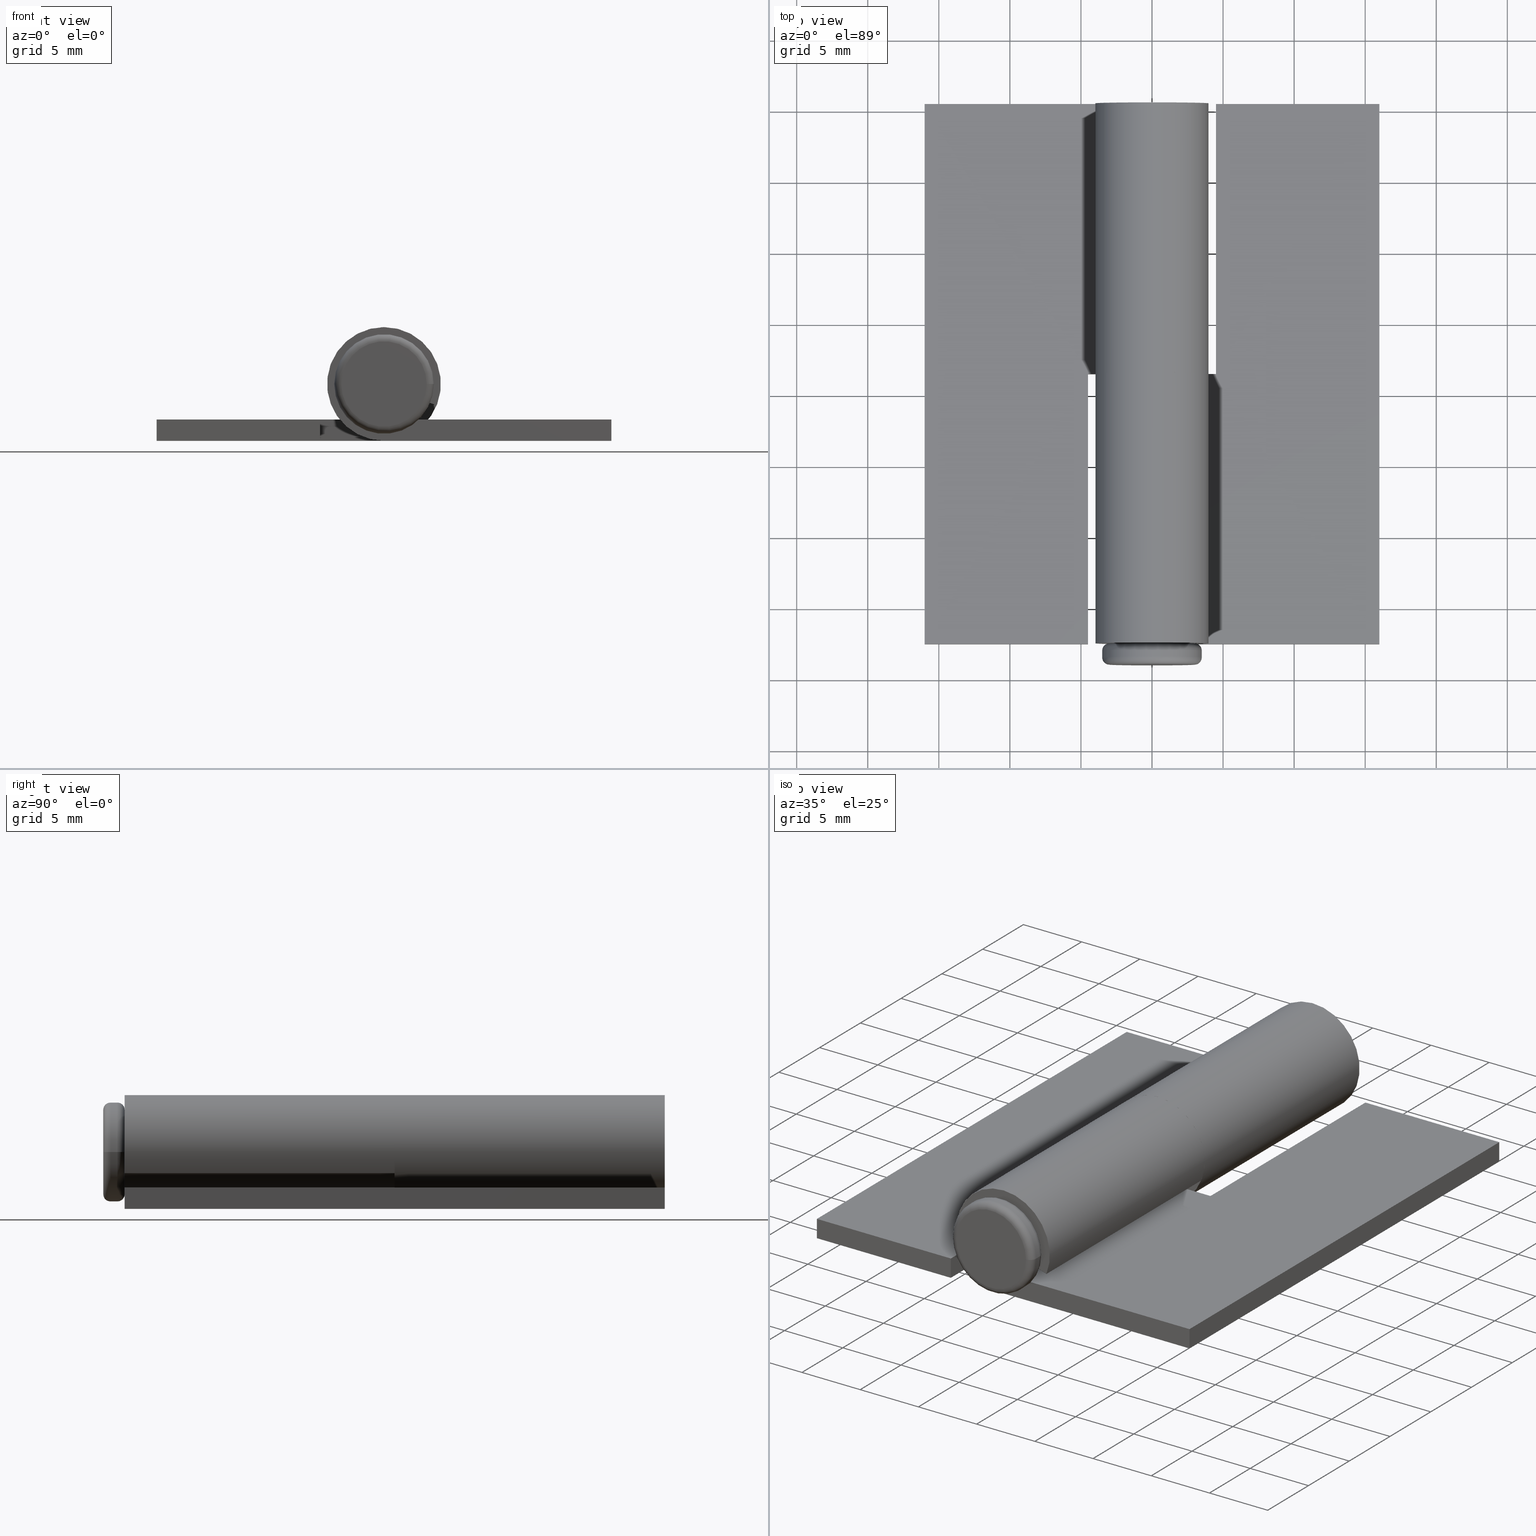
[diagram: canonical four-view strip — front | top / right | iso, engineering-drawing reading convention]
A machine part, canonical four-view strip (front | top / right | iso — engineering-drawing reading convention). The complete STEP part file that produces these views, byte-faithful:
ISO-10303-21;
HEADER;
/* Generated by software containing ST-Developer
 * from STEP Tools, Inc. (www.steptools.com) 
 */

FILE_DESCRIPTION(
/* description */ (''),
/* implementation_level */ '2;1');

FILE_NAME(
/* name */ 
'\\\\SYNOLOGYNAS\\web\\db2\\HBSN3832-15\\\X2\B3C4BA74\X0\\\DR_HBSN3832
-15.stp',
/* time_stamp */ '2023-06-05T14:53:35+09:00',
/* author */ ('user'),
/* organization */ (''),
/* preprocessor_version */ 'ST-DEVELOPER v15.6',
/* originating_system */ 'Autodesk Inventor 2015',
/* authorisation */ '');

FILE_SCHEMA (('AUTOMOTIVE_DESIGN { 1 0 10303 214 3 1 1 }'));
ENDSEC;

DATA;
#10=MECHANICAL_DESIGN_GEOMETRIC_PRESENTATION_REPRESENTATION('',(#32,#34,
#33),#773);
#11=ITEM_DEFINED_TRANSFORMATION($,$,#455,#501);
#12=ITEM_DEFINED_TRANSFORMATION($,$,#470,#502);
#13=(
REPRESENTATION_RELATIONSHIP($,$,#788,#790)
REPRESENTATION_RELATIONSHIP_WITH_TRANSFORMATION(#11)
SHAPE_REPRESENTATION_RELATIONSHIP()
);
#14=(
REPRESENTATION_RELATIONSHIP($,$,#789,#790)
REPRESENTATION_RELATIONSHIP_WITH_TRANSFORMATION(#12)
SHAPE_REPRESENTATION_RELATIONSHIP()
);
#15=CONTEXT_DEPENDENT_SHAPE_REPRESENTATION(#13,#786);
#16=CONTEXT_DEPENDENT_SHAPE_REPRESENTATION(#14,#787);
#17=NEXT_ASSEMBLY_USAGE_OCCURRENCE('DR_HBSN3832-15:1',$,$,#794,#792,$);
#18=NEXT_ASSEMBLY_USAGE_OCCURRENCE('DR_HBSN3832-15P2:1',$,$,#794,#793,$);
#19=FACE_BOUND('',#93,.T.);
#20=FACE_BOUND('',#95,.T.);
#21=FACE_BOUND('',#98,.T.);
#22=FACE_BOUND('',#100,.T.);
#23=FACE_BOUND('',#103,.T.);
#24=FACE_BOUND('',#105,.T.);
#25=TOROIDAL_SURFACE('',#485,1.5,1.);
#26=TOROIDAL_SURFACE('',#491,3.,0.5);
#27=TOROIDAL_SURFACE('',#497,3.,0.5);
#28=SHAPE_REPRESENTATION_RELATIONSHIP('SRR','None',#788,#30);
#29=SHAPE_REPRESENTATION_RELATIONSHIP('SRR','None',#789,#31);
#30=ADVANCED_BREP_SHAPE_REPRESENTATION($,(#35),#770);
#31=ADVANCED_BREP_SHAPE_REPRESENTATION($,(#36,#37),#771);
#32=STYLED_ITEM('',(#808),#35);
#33=STYLED_ITEM('',(#809),#36);
#34=STYLED_ITEM('',(#809),#37);
#35=MANIFOLD_SOLID_BREP('\X2\C194B9ACB4DC\X0\1',#452);
#36=MANIFOLD_SOLID_BREP('\X2\C194B9ACB4DC\X0\1',#453);
#37=MANIFOLD_SOLID_BREP('\X2\C194B9ACB4DC\X0\4',#454);
#38=CYLINDRICAL_SURFACE('',#461,4.);
#39=CYLINDRICAL_SURFACE('',#466,2.5);
#40=CYLINDRICAL_SURFACE('',#476,4.);
#41=CYLINDRICAL_SURFACE('',#481,2.5);
#42=CYLINDRICAL_SURFACE('',#488,2.5);
#43=CYLINDRICAL_SURFACE('',#494,3.5);
#44=FACE_OUTER_BOUND('',#72,.T.);
#45=FACE_OUTER_BOUND('',#73,.T.);
#46=FACE_OUTER_BOUND('',#74,.T.);
#47=FACE_OUTER_BOUND('',#75,.T.);
#48=FACE_OUTER_BOUND('',#76,.T.);
#49=FACE_OUTER_BOUND('',#77,.T.);
#50=FACE_OUTER_BOUND('',#78,.T.);
#51=FACE_OUTER_BOUND('',#79,.T.);
#52=FACE_OUTER_BOUND('',#80,.T.);
#53=FACE_OUTER_BOUND('',#81,.T.);
#54=FACE_OUTER_BOUND('',#82,.T.);
#55=FACE_OUTER_BOUND('',#83,.T.);
#56=FACE_OUTER_BOUND('',#84,.T.);
#57=FACE_OUTER_BOUND('',#85,.T.);
#58=FACE_OUTER_BOUND('',#86,.T.);
#59=FACE_OUTER_BOUND('',#87,.T.);
#60=FACE_OUTER_BOUND('',#88,.T.);
#61=FACE_OUTER_BOUND('',#89,.T.);
#62=FACE_OUTER_BOUND('',#90,.T.);
#63=FACE_OUTER_BOUND('',#91,.T.);
#64=FACE_OUTER_BOUND('',#92,.T.);
#65=FACE_OUTER_BOUND('',#94,.T.);
#66=FACE_OUTER_BOUND('',#96,.T.);
#67=FACE_OUTER_BOUND('',#97,.T.);
#68=FACE_OUTER_BOUND('',#99,.T.);
#69=FACE_OUTER_BOUND('',#101,.T.);
#70=FACE_OUTER_BOUND('',#102,.T.);
#71=FACE_OUTER_BOUND('',#104,.T.);
#72=EDGE_LOOP('',(#295,#296,#297,#298,#299,#300));
#73=EDGE_LOOP('',(#301,#302,#303,#304));
#74=EDGE_LOOP('',(#305,#306,#307,#308,#309,#310));
#75=EDGE_LOOP('',(#311,#312,#313,#314));
#76=EDGE_LOOP('',(#315,#316,#317,#318));
#77=EDGE_LOOP('',(#319,#320,#321,#322));
#78=EDGE_LOOP('',(#323,#324,#325,#326,#327,#328));
#79=EDGE_LOOP('',(#329,#330,#331,#332));
#80=EDGE_LOOP('',(#333,#334,#335,#336));
#81=EDGE_LOOP('',(#337,#338,#339,#340,#341,#342));
#82=EDGE_LOOP('',(#343,#344,#345,#346,#347,#348));
#83=EDGE_LOOP('',(#349,#350,#351,#352));
#84=EDGE_LOOP('',(#353,#354,#355,#356,#357,#358));
#85=EDGE_LOOP('',(#359,#360,#361,#362));
#86=EDGE_LOOP('',(#363,#364,#365,#366));
#87=EDGE_LOOP('',(#367,#368,#369,#370));
#88=EDGE_LOOP('',(#371,#372,#373,#374,#375,#376));
#89=EDGE_LOOP('',(#377,#378,#379,#380));
#90=EDGE_LOOP('',(#381,#382,#383,#384));
#91=EDGE_LOOP('',(#385,#386,#387,#388,#389,#390));
#92=EDGE_LOOP('',(#391));
#93=EDGE_LOOP('',(#392));
#94=EDGE_LOOP('',(#393));
#95=EDGE_LOOP('',(#394));
#96=EDGE_LOOP('',(#395));
#97=EDGE_LOOP('',(#396));
#98=EDGE_LOOP('',(#397));
#99=EDGE_LOOP('',(#398));
#100=EDGE_LOOP('',(#399));
#101=EDGE_LOOP('',(#400));
#102=EDGE_LOOP('',(#401));
#103=EDGE_LOOP('',(#402));
#104=EDGE_LOOP('',(#403));
#105=EDGE_LOOP('',(#404));
#106=LINE('',#645,#146);
#107=LINE('',#649,#147);
#108=LINE('',#651,#148);
#109=LINE('',#652,#149);
#110=LINE('',#655,#150);
#111=LINE('',#657,#151);
#112=LINE('',#658,#152);
#113=LINE('',#661,#153);
#114=LINE('',#663,#154);
#115=LINE('',#665,#155);
#116=LINE('',#666,#156);
#117=LINE('',#670,#157);
#118=LINE('',#673,#158);
#119=LINE('',#674,#159);
#120=LINE('',#677,#160);
#121=LINE('',#678,#161);
#122=LINE('',#681,#162);
#123=LINE('',#682,#163);
#124=LINE('',#685,#164);
#125=LINE('',#688,#165);
#126=LINE('',#696,#166);
#127=LINE('',#700,#167);
#128=LINE('',#702,#168);
#129=LINE('',#703,#169);
#130=LINE('',#706,#170);
#131=LINE('',#708,#171);
#132=LINE('',#709,#172);
#133=LINE('',#712,#173);
#134=LINE('',#714,#174);
#135=LINE('',#716,#175);
#136=LINE('',#717,#176);
#137=LINE('',#721,#177);
#138=LINE('',#724,#178);
#139=LINE('',#725,#179);
#140=LINE('',#728,#180);
#141=LINE('',#729,#181);
#142=LINE('',#732,#182);
#143=LINE('',#733,#183);
#144=LINE('',#736,#184);
#145=LINE('',#739,#185);
#146=VECTOR('',#509,1.50481750356272);
#147=VECTOR('',#512,4.5);
#148=VECTOR('',#513,1.5);
#149=VECTOR('',#514,4.5);
#150=VECTOR('',#517,19.);
#151=VECTOR('',#518,1.5);
#152=VECTOR('',#519,19.);
#153=VECTOR('',#522,11.5);
#154=VECTOR('',#523,38.);
#155=VECTOR('',#524,16.);
#156=VECTOR('',#525,19.);
#157=VECTOR('',#530,19.);
#158=VECTOR('',#533,11.5);
#159=VECTOR('',#534,1.5);
#160=VECTOR('',#537,38.);
#161=VECTOR('',#538,1.5);
#162=VECTOR('',#541,19.);
#163=VECTOR('',#542,16.);
#164=VECTOR('',#545,19.);
#165=VECTOR('',#550,1.50481750356272);
#166=VECTOR('',#559,1.50481750356272);
#167=VECTOR('',#562,4.5);
#168=VECTOR('',#563,1.5);
#169=VECTOR('',#564,4.5);
#170=VECTOR('',#567,19.);
#171=VECTOR('',#568,1.5);
#172=VECTOR('',#569,19.);
#173=VECTOR('',#572,11.5);
#174=VECTOR('',#573,38.);
#175=VECTOR('',#574,16.);
#176=VECTOR('',#575,19.);
#177=VECTOR('',#580,19.);
#178=VECTOR('',#583,11.5);
#179=VECTOR('',#584,1.5);
#180=VECTOR('',#587,38.);
#181=VECTOR('',#588,1.5);
#182=VECTOR('',#591,19.);
#183=VECTOR('',#592,16.);
#184=VECTOR('',#595,19.);
#185=VECTOR('',#600,1.50481750356272);
#186=CIRCLE('',#457,4.);
#187=CIRCLE('',#458,2.5);
#188=CIRCLE('',#462,4.);
#189=CIRCLE('',#467,2.5);
#190=CIRCLE('',#472,4.);
#191=CIRCLE('',#473,2.5);
#192=CIRCLE('',#477,4.);
#193=CIRCLE('',#482,2.5);
#194=CIRCLE('',#486,1.5);
#195=CIRCLE('',#487,2.5);
#196=CIRCLE('',#489,2.5);
#197=CIRCLE('',#492,3.);
#198=CIRCLE('',#493,3.5);
#199=CIRCLE('',#495,3.5);
#200=CIRCLE('',#498,3.);
#201=VERTEX_POINT('',#641);
#202=VERTEX_POINT('',#642);
#203=VERTEX_POINT('',#644);
#204=VERTEX_POINT('',#646);
#205=VERTEX_POINT('',#648);
#206=VERTEX_POINT('',#650);
#207=VERTEX_POINT('',#654);
#208=VERTEX_POINT('',#656);
#209=VERTEX_POINT('',#660);
#210=VERTEX_POINT('',#662);
#211=VERTEX_POINT('',#664);
#212=VERTEX_POINT('',#668);
#213=VERTEX_POINT('',#672);
#214=VERTEX_POINT('',#676);
#215=VERTEX_POINT('',#680);
#216=VERTEX_POINT('',#684);
#217=VERTEX_POINT('',#692);
#218=VERTEX_POINT('',#693);
#219=VERTEX_POINT('',#695);
#220=VERTEX_POINT('',#697);
#221=VERTEX_POINT('',#699);
#222=VERTEX_POINT('',#701);
#223=VERTEX_POINT('',#705);
#224=VERTEX_POINT('',#707);
#225=VERTEX_POINT('',#711);
#226=VERTEX_POINT('',#713);
#227=VERTEX_POINT('',#715);
#228=VERTEX_POINT('',#719);
#229=VERTEX_POINT('',#723);
#230=VERTEX_POINT('',#727);
#231=VERTEX_POINT('',#731);
#232=VERTEX_POINT('',#735);
#233=VERTEX_POINT('',#742);
#234=VERTEX_POINT('',#744);
#235=VERTEX_POINT('',#747);
#236=VERTEX_POINT('',#751);
#237=VERTEX_POINT('',#753);
#238=VERTEX_POINT('',#756);
#239=VERTEX_POINT('',#760);
#240=EDGE_CURVE('',#201,#202,#186,.T.);
#241=EDGE_CURVE('',#203,#201,#106,.T.);
#242=EDGE_CURVE('',#204,#203,#187,.T.);
#243=EDGE_CURVE('',#205,#204,#107,.T.);
#244=EDGE_CURVE('',#206,#205,#108,.T.);
#245=EDGE_CURVE('',#202,#206,#109,.T.);
#246=EDGE_CURVE('',#207,#205,#110,.T.);
#247=EDGE_CURVE('',#208,#207,#111,.T.);
#248=EDGE_CURVE('',#206,#208,#112,.T.);
#249=EDGE_CURVE('',#208,#209,#113,.T.);
#250=EDGE_CURVE('',#210,#209,#114,.T.);
#251=EDGE_CURVE('',#211,#210,#115,.T.);
#252=EDGE_CURVE('',#211,#202,#116,.T.);
#253=EDGE_CURVE('',#212,#211,#188,.T.);
#254=EDGE_CURVE('',#212,#201,#117,.T.);
#255=EDGE_CURVE('',#213,#207,#118,.T.);
#256=EDGE_CURVE('',#209,#213,#119,.T.);
#257=EDGE_CURVE('',#214,#213,#120,.T.);
#258=EDGE_CURVE('',#210,#214,#121,.T.);
#259=EDGE_CURVE('',#215,#204,#122,.T.);
#260=EDGE_CURVE('',#214,#215,#123,.T.);
#261=EDGE_CURVE('',#216,#203,#124,.T.);
#262=EDGE_CURVE('',#215,#216,#189,.T.);
#263=EDGE_CURVE('',#216,#212,#125,.T.);
#264=EDGE_CURVE('',#217,#218,#190,.T.);
#265=EDGE_CURVE('',#219,#217,#126,.T.);
#266=EDGE_CURVE('',#220,#219,#191,.T.);
#267=EDGE_CURVE('',#221,#220,#127,.T.);
#268=EDGE_CURVE('',#222,#221,#128,.T.);
#269=EDGE_CURVE('',#218,#222,#129,.T.);
#270=EDGE_CURVE('',#223,#221,#130,.T.);
#271=EDGE_CURVE('',#224,#223,#131,.T.);
#272=EDGE_CURVE('',#222,#224,#132,.T.);
#273=EDGE_CURVE('',#224,#225,#133,.T.);
#274=EDGE_CURVE('',#226,#225,#134,.T.);
#275=EDGE_CURVE('',#227,#226,#135,.T.);
#276=EDGE_CURVE('',#227,#218,#136,.T.);
#277=EDGE_CURVE('',#228,#227,#192,.T.);
#278=EDGE_CURVE('',#228,#217,#137,.T.);
#279=EDGE_CURVE('',#229,#223,#138,.T.);
#280=EDGE_CURVE('',#225,#229,#139,.T.);
#281=EDGE_CURVE('',#230,#229,#140,.T.);
#282=EDGE_CURVE('',#226,#230,#141,.T.);
#283=EDGE_CURVE('',#231,#220,#142,.T.);
#284=EDGE_CURVE('',#230,#231,#143,.T.);
#285=EDGE_CURVE('',#232,#219,#144,.T.);
#286=EDGE_CURVE('',#231,#232,#193,.T.);
#287=EDGE_CURVE('',#232,#228,#145,.T.);
#288=EDGE_CURVE('',#233,#233,#194,.T.);
#289=EDGE_CURVE('',#234,#234,#195,.T.);
#290=EDGE_CURVE('',#235,#235,#196,.T.);
#291=EDGE_CURVE('',#236,#236,#197,.T.);
#292=EDGE_CURVE('',#237,#237,#198,.T.);
#293=EDGE_CURVE('',#238,#238,#199,.T.);
#294=EDGE_CURVE('',#239,#239,#200,.T.);
#295=ORIENTED_EDGE('',*,*,#240,.F.);
#296=ORIENTED_EDGE('',*,*,#241,.F.);
#297=ORIENTED_EDGE('',*,*,#242,.F.);
#298=ORIENTED_EDGE('',*,*,#243,.F.);
#299=ORIENTED_EDGE('',*,*,#244,.F.);
#300=ORIENTED_EDGE('',*,*,#245,.F.);
#301=ORIENTED_EDGE('',*,*,#246,.F.);
#302=ORIENTED_EDGE('',*,*,#247,.F.);
#303=ORIENTED_EDGE('',*,*,#248,.F.);
#304=ORIENTED_EDGE('',*,*,#244,.T.);
#305=ORIENTED_EDGE('',*,*,#245,.T.);
#306=ORIENTED_EDGE('',*,*,#248,.T.);
#307=ORIENTED_EDGE('',*,*,#249,.T.);
#308=ORIENTED_EDGE('',*,*,#250,.F.);
#309=ORIENTED_EDGE('',*,*,#251,.F.);
#310=ORIENTED_EDGE('',*,*,#252,.T.);
#311=ORIENTED_EDGE('',*,*,#240,.T.);
#312=ORIENTED_EDGE('',*,*,#252,.F.);
#313=ORIENTED_EDGE('',*,*,#253,.F.);
#314=ORIENTED_EDGE('',*,*,#254,.T.);
#315=ORIENTED_EDGE('',*,*,#247,.T.);
#316=ORIENTED_EDGE('',*,*,#255,.F.);
#317=ORIENTED_EDGE('',*,*,#256,.F.);
#318=ORIENTED_EDGE('',*,*,#249,.F.);
#319=ORIENTED_EDGE('',*,*,#256,.T.);
#320=ORIENTED_EDGE('',*,*,#257,.F.);
#321=ORIENTED_EDGE('',*,*,#258,.F.);
#322=ORIENTED_EDGE('',*,*,#250,.T.);
#323=ORIENTED_EDGE('',*,*,#243,.T.);
#324=ORIENTED_EDGE('',*,*,#259,.F.);
#325=ORIENTED_EDGE('',*,*,#260,.F.);
#326=ORIENTED_EDGE('',*,*,#257,.T.);
#327=ORIENTED_EDGE('',*,*,#255,.T.);
#328=ORIENTED_EDGE('',*,*,#246,.T.);
#329=ORIENTED_EDGE('',*,*,#242,.T.);
#330=ORIENTED_EDGE('',*,*,#261,.F.);
#331=ORIENTED_EDGE('',*,*,#262,.F.);
#332=ORIENTED_EDGE('',*,*,#259,.T.);
#333=ORIENTED_EDGE('',*,*,#241,.T.);
#334=ORIENTED_EDGE('',*,*,#254,.F.);
#335=ORIENTED_EDGE('',*,*,#263,.F.);
#336=ORIENTED_EDGE('',*,*,#261,.T.);
#337=ORIENTED_EDGE('',*,*,#251,.T.);
#338=ORIENTED_EDGE('',*,*,#258,.T.);
#339=ORIENTED_EDGE('',*,*,#260,.T.);
#340=ORIENTED_EDGE('',*,*,#262,.T.);
#341=ORIENTED_EDGE('',*,*,#263,.T.);
#342=ORIENTED_EDGE('',*,*,#253,.T.);
#343=ORIENTED_EDGE('',*,*,#264,.F.);
#344=ORIENTED_EDGE('',*,*,#265,.F.);
#345=ORIENTED_EDGE('',*,*,#266,.F.);
#346=ORIENTED_EDGE('',*,*,#267,.F.);
#347=ORIENTED_EDGE('',*,*,#268,.F.);
#348=ORIENTED_EDGE('',*,*,#269,.F.);
#349=ORIENTED_EDGE('',*,*,#270,.F.);
#350=ORIENTED_EDGE('',*,*,#271,.F.);
#351=ORIENTED_EDGE('',*,*,#272,.F.);
#352=ORIENTED_EDGE('',*,*,#268,.T.);
#353=ORIENTED_EDGE('',*,*,#269,.T.);
#354=ORIENTED_EDGE('',*,*,#272,.T.);
#355=ORIENTED_EDGE('',*,*,#273,.T.);
#356=ORIENTED_EDGE('',*,*,#274,.F.);
#357=ORIENTED_EDGE('',*,*,#275,.F.);
#358=ORIENTED_EDGE('',*,*,#276,.T.);
#359=ORIENTED_EDGE('',*,*,#264,.T.);
#360=ORIENTED_EDGE('',*,*,#276,.F.);
#361=ORIENTED_EDGE('',*,*,#277,.F.);
#362=ORIENTED_EDGE('',*,*,#278,.T.);
#363=ORIENTED_EDGE('',*,*,#271,.T.);
#364=ORIENTED_EDGE('',*,*,#279,.F.);
#365=ORIENTED_EDGE('',*,*,#280,.F.);
#366=ORIENTED_EDGE('',*,*,#273,.F.);
#367=ORIENTED_EDGE('',*,*,#280,.T.);
#368=ORIENTED_EDGE('',*,*,#281,.F.);
#369=ORIENTED_EDGE('',*,*,#282,.F.);
#370=ORIENTED_EDGE('',*,*,#274,.T.);
#371=ORIENTED_EDGE('',*,*,#267,.T.);
#372=ORIENTED_EDGE('',*,*,#283,.F.);
#373=ORIENTED_EDGE('',*,*,#284,.F.);
#374=ORIENTED_EDGE('',*,*,#281,.T.);
#375=ORIENTED_EDGE('',*,*,#279,.T.);
#376=ORIENTED_EDGE('',*,*,#270,.T.);
#377=ORIENTED_EDGE('',*,*,#266,.T.);
#378=ORIENTED_EDGE('',*,*,#285,.F.);
#379=ORIENTED_EDGE('',*,*,#286,.F.);
#380=ORIENTED_EDGE('',*,*,#283,.T.);
#381=ORIENTED_EDGE('',*,*,#265,.T.);
#382=ORIENTED_EDGE('',*,*,#278,.F.);
#383=ORIENTED_EDGE('',*,*,#287,.F.);
#384=ORIENTED_EDGE('',*,*,#285,.T.);
#385=ORIENTED_EDGE('',*,*,#275,.T.);
#386=ORIENTED_EDGE('',*,*,#282,.T.);
#387=ORIENTED_EDGE('',*,*,#284,.T.);
#388=ORIENTED_EDGE('',*,*,#286,.T.);
#389=ORIENTED_EDGE('',*,*,#287,.T.);
#390=ORIENTED_EDGE('',*,*,#277,.T.);
#391=ORIENTED_EDGE('',*,*,#288,.T.);
#392=ORIENTED_EDGE('',*,*,#289,.T.);
#393=ORIENTED_EDGE('',*,*,#290,.F.);
#394=ORIENTED_EDGE('',*,*,#289,.F.);
#395=ORIENTED_EDGE('',*,*,#288,.F.);
#396=ORIENTED_EDGE('',*,*,#291,.T.);
#397=ORIENTED_EDGE('',*,*,#292,.T.);
#398=ORIENTED_EDGE('',*,*,#293,.F.);
#399=ORIENTED_EDGE('',*,*,#292,.F.);
#400=ORIENTED_EDGE('',*,*,#291,.F.);
#401=ORIENTED_EDGE('',*,*,#293,.T.);
#402=ORIENTED_EDGE('',*,*,#294,.T.);
#403=ORIENTED_EDGE('',*,*,#294,.F.);
#404=ORIENTED_EDGE('',*,*,#290,.T.);
#405=PLANE('',#456);
#406=PLANE('',#459);
#407=PLANE('',#460);
#408=PLANE('',#463);
#409=PLANE('',#464);
#410=PLANE('',#465);
#411=PLANE('',#468);
#412=PLANE('',#469);
#413=PLANE('',#471);
#414=PLANE('',#474);
#415=PLANE('',#475);
#416=PLANE('',#478);
#417=PLANE('',#479);
#418=PLANE('',#480);
#419=PLANE('',#483);
#420=PLANE('',#484);
#421=PLANE('',#490);
#422=PLANE('',#496);
#423=PLANE('',#499);
#424=ADVANCED_FACE('',(#44),#405,.F.);
#425=ADVANCED_FACE('',(#45),#406,.F.);
#426=ADVANCED_FACE('',(#46),#407,.T.);
#427=ADVANCED_FACE('',(#47),#38,.T.);
#428=ADVANCED_FACE('',(#48),#408,.T.);
#429=ADVANCED_FACE('',(#49),#409,.T.);
#430=ADVANCED_FACE('',(#50),#410,.T.);
#431=ADVANCED_FACE('',(#51),#39,.F.);
#432=ADVANCED_FACE('',(#52),#411,.T.);
#433=ADVANCED_FACE('',(#53),#412,.F.);
#434=ADVANCED_FACE('',(#54),#413,.F.);
#435=ADVANCED_FACE('',(#55),#414,.F.);
#436=ADVANCED_FACE('',(#56),#415,.T.);
#437=ADVANCED_FACE('',(#57),#40,.T.);
#438=ADVANCED_FACE('',(#58),#416,.T.);
#439=ADVANCED_FACE('',(#59),#417,.T.);
#440=ADVANCED_FACE('',(#60),#418,.T.);
#441=ADVANCED_FACE('',(#61),#41,.F.);
#442=ADVANCED_FACE('',(#62),#419,.T.);
#443=ADVANCED_FACE('',(#63),#420,.F.);
#444=ADVANCED_FACE('',(#64,#19),#25,.T.);
#445=ADVANCED_FACE('',(#65,#20),#42,.T.);
#446=ADVANCED_FACE('',(#66),#421,.F.);
#447=ADVANCED_FACE('',(#67,#21),#26,.T.);
#448=ADVANCED_FACE('',(#68,#22),#43,.T.);
#449=ADVANCED_FACE('',(#69),#422,.F.);
#450=ADVANCED_FACE('',(#70,#23),#27,.T.);
#451=ADVANCED_FACE('',(#71,#24),#423,.T.);
#452=CLOSED_SHELL('',(#424,#425,#426,#427,#428,#429,#430,#431,#432,#433));
#453=CLOSED_SHELL('',(#434,#435,#436,#437,#438,#439,#440,#441,#442,#443));
#454=CLOSED_SHELL('',(#444,#445,#446,#447,#448,#449,#450,#451));
#455=AXIS2_PLACEMENT_3D('placement',#639,#503,#504);
#456=AXIS2_PLACEMENT_3D('',#640,#505,#506);
#457=AXIS2_PLACEMENT_3D('',#643,#507,#508);
#458=AXIS2_PLACEMENT_3D('',#647,#510,#511);
#459=AXIS2_PLACEMENT_3D('',#653,#515,#516);
#460=AXIS2_PLACEMENT_3D('',#659,#520,#521);
#461=AXIS2_PLACEMENT_3D('',#667,#526,#527);
#462=AXIS2_PLACEMENT_3D('',#669,#528,#529);
#463=AXIS2_PLACEMENT_3D('',#671,#531,#532);
#464=AXIS2_PLACEMENT_3D('',#675,#535,#536);
#465=AXIS2_PLACEMENT_3D('',#679,#539,#540);
#466=AXIS2_PLACEMENT_3D('',#683,#543,#544);
#467=AXIS2_PLACEMENT_3D('',#686,#546,#547);
#468=AXIS2_PLACEMENT_3D('',#687,#548,#549);
#469=AXIS2_PLACEMENT_3D('',#689,#551,#552);
#470=AXIS2_PLACEMENT_3D('placement',#690,#553,#554);
#471=AXIS2_PLACEMENT_3D('',#691,#555,#556);
#472=AXIS2_PLACEMENT_3D('',#694,#557,#558);
#473=AXIS2_PLACEMENT_3D('',#698,#560,#561);
#474=AXIS2_PLACEMENT_3D('',#704,#565,#566);
#475=AXIS2_PLACEMENT_3D('',#710,#570,#571);
#476=AXIS2_PLACEMENT_3D('',#718,#576,#577);
#477=AXIS2_PLACEMENT_3D('',#720,#578,#579);
#478=AXIS2_PLACEMENT_3D('',#722,#581,#582);
#479=AXIS2_PLACEMENT_3D('',#726,#585,#586);
#480=AXIS2_PLACEMENT_3D('',#730,#589,#590);
#481=AXIS2_PLACEMENT_3D('',#734,#593,#594);
#482=AXIS2_PLACEMENT_3D('',#737,#596,#597);
#483=AXIS2_PLACEMENT_3D('',#738,#598,#599);
#484=AXIS2_PLACEMENT_3D('',#740,#601,#602);
#485=AXIS2_PLACEMENT_3D('',#741,#603,#604);
#486=AXIS2_PLACEMENT_3D('',#743,#605,#606);
#487=AXIS2_PLACEMENT_3D('',#745,#607,#608);
#488=AXIS2_PLACEMENT_3D('',#746,#609,#610);
#489=AXIS2_PLACEMENT_3D('',#748,#611,#612);
#490=AXIS2_PLACEMENT_3D('',#749,#613,#614);
#491=AXIS2_PLACEMENT_3D('',#750,#615,#616);
#492=AXIS2_PLACEMENT_3D('',#752,#617,#618);
#493=AXIS2_PLACEMENT_3D('',#754,#619,#620);
#494=AXIS2_PLACEMENT_3D('',#755,#621,#622);
#495=AXIS2_PLACEMENT_3D('',#757,#623,#624);
#496=AXIS2_PLACEMENT_3D('',#758,#625,#626);
#497=AXIS2_PLACEMENT_3D('',#759,#627,#628);
#498=AXIS2_PLACEMENT_3D('',#761,#629,#630);
#499=AXIS2_PLACEMENT_3D('',#762,#631,#632);
#500=AXIS2_PLACEMENT_3D('placement',#763,#633,#634);
#501=AXIS2_PLACEMENT_3D('',#764,#635,#636);
#502=AXIS2_PLACEMENT_3D('',#765,#637,#638);
#503=DIRECTION('axis',(0.,0.,1.));
#504=DIRECTION('refdir',(1.,0.,0.));
#505=DIRECTION('center_axis',(2.61228946970625E-16,2.90022391625372E-32,
-1.));
#506=DIRECTION('ref_axis',(-1.,0.,-3.5527136788005E-16));
#507=DIRECTION('center_axis',(2.61228946970625E-16,2.90022391625372E-32,
-1.));
#508=DIRECTION('ref_axis',(-1.22464679914735E-16,1.,0.));
#509=DIRECTION('',(-0.948870684388055,-0.315665050819607,-2.47872489693988E-16));
#510=DIRECTION('center_axis',(-2.61228946970625E-16,-2.90022391625372E-32,
1.));
#511=DIRECTION('ref_axis',(2.57175827820944E-16,-1.,0.));
#512=DIRECTION('',(1.,2.25514051876985E-16,2.61228946970625E-16));
#513=DIRECTION('',(-1.11022302462516E-16,1.,0.));
#514=DIRECTION('',(-1.,-1.21430643318377E-16,-2.61228946970625E-16));
#515=DIRECTION('center_axis',(-1.,-1.11022302462516E-16,-2.92163953848725E-16));
#516=DIRECTION('ref_axis',(-2.66453525910038E-16,0.,1.));
#517=DIRECTION('',(2.92163953848725E-16,6.58870770448265E-32,-1.));
#518=DIRECTION('',(-1.11022302462516E-16,1.,0.));
#519=DIRECTION('',(-2.92163953848725E-16,-3.54776568702912E-32,1.));
#520=DIRECTION('center_axis',(1.21430643318377E-16,-1.,0.));
#521=DIRECTION('ref_axis',(0.,0.,-1.));
#522=DIRECTION('',(-1.,-1.21430643318377E-16,0.));
#523=DIRECTION('',(0.,0.,1.));
#524=DIRECTION('',(-1.,-1.21430643318377E-16,0.));
#525=DIRECTION('',(0.,0.,1.));
#526=DIRECTION('center_axis',(0.,0.,1.));
#527=DIRECTION('ref_axis',(-1.22464679914735E-16,1.,0.));
#528=DIRECTION('center_axis',(0.,0.,-1.));
#529=DIRECTION('ref_axis',(-1.22464679914735E-16,1.,0.));
#530=DIRECTION('',(0.,0.,1.));
#531=DIRECTION('center_axis',(0.,0.,1.));
#532=DIRECTION('ref_axis',(1.,0.,0.));
#533=DIRECTION('',(1.,2.25514051876985E-16,0.));
#534=DIRECTION('',(0.,1.,0.));
#535=DIRECTION('center_axis',(-1.,0.,0.));
#536=DIRECTION('ref_axis',(0.,0.,1.));
#537=DIRECTION('',(0.,0.,1.));
#538=DIRECTION('',(0.,1.,0.));
#539=DIRECTION('center_axis',(-2.25514051876985E-16,1.,0.));
#540=DIRECTION('ref_axis',(0.,0.,1.));
#541=DIRECTION('',(0.,0.,1.));
#542=DIRECTION('',(1.,2.25514051876985E-16,0.));
#543=DIRECTION('center_axis',(0.,0.,1.));
#544=DIRECTION('ref_axis',(2.57175827820944E-16,-1.,0.));
#545=DIRECTION('',(0.,0.,1.));
#546=DIRECTION('center_axis',(0.,0.,1.));
#547=DIRECTION('ref_axis',(2.57175827820944E-16,-1.,0.));
#548=DIRECTION('center_axis',(0.315665050819607,-0.948870684388055,0.));
#549=DIRECTION('ref_axis',(0.,0.,-1.));
#550=DIRECTION('',(-0.948870684388055,-0.315665050819607,0.));
#551=DIRECTION('center_axis',(0.,0.,1.));
#552=DIRECTION('ref_axis',(1.,0.,0.));
#553=DIRECTION('axis',(0.,0.,1.));
#554=DIRECTION('refdir',(1.,0.,0.));
#555=DIRECTION('center_axis',(2.61228946970625E-16,2.90022391625372E-32,
-1.));
#556=DIRECTION('ref_axis',(-1.,0.,-3.5527136788005E-16));
#557=DIRECTION('center_axis',(2.61228946970625E-16,2.90022391625372E-32,
-1.));
#558=DIRECTION('ref_axis',(-1.22464679914735E-16,1.,0.));
#559=DIRECTION('',(-0.948870684388055,-0.315665050819607,-2.47872489693988E-16));
#560=DIRECTION('center_axis',(-2.61228946970625E-16,-2.90022391625372E-32,
1.));
#561=DIRECTION('ref_axis',(2.57175827820944E-16,-1.,0.));
#562=DIRECTION('',(1.,2.25514051876985E-16,2.61228946970625E-16));
#563=DIRECTION('',(-1.11022302462516E-16,1.,0.));
#564=DIRECTION('',(-1.,-1.21430643318377E-16,-2.61228946970625E-16));
#565=DIRECTION('center_axis',(-1.,-1.11022302462516E-16,-2.92163953848725E-16));
#566=DIRECTION('ref_axis',(-2.66453525910038E-16,0.,1.));
#567=DIRECTION('',(2.92163953848725E-16,6.58870770448265E-32,-1.));
#568=DIRECTION('',(-1.11022302462516E-16,1.,0.));
#569=DIRECTION('',(-2.92163953848725E-16,-3.54776568702912E-32,1.));
#570=DIRECTION('center_axis',(1.21430643318377E-16,-1.,0.));
#571=DIRECTION('ref_axis',(0.,0.,-1.));
#572=DIRECTION('',(-1.,-1.21430643318377E-16,0.));
#573=DIRECTION('',(0.,0.,1.));
#574=DIRECTION('',(-1.,-1.21430643318377E-16,0.));
#575=DIRECTION('',(0.,0.,1.));
#576=DIRECTION('center_axis',(0.,0.,1.));
#577=DIRECTION('ref_axis',(-1.22464679914735E-16,1.,0.));
#578=DIRECTION('center_axis',(0.,0.,-1.));
#579=DIRECTION('ref_axis',(-1.22464679914735E-16,1.,0.));
#580=DIRECTION('',(0.,0.,1.));
#581=DIRECTION('center_axis',(0.,0.,1.));
#582=DIRECTION('ref_axis',(1.,0.,0.));
#583=DIRECTION('',(1.,2.25514051876985E-16,0.));
#584=DIRECTION('',(0.,1.,0.));
#585=DIRECTION('center_axis',(-1.,0.,0.));
#586=DIRECTION('ref_axis',(0.,0.,1.));
#587=DIRECTION('',(0.,0.,1.));
#588=DIRECTION('',(0.,1.,0.));
#589=DIRECTION('center_axis',(-2.25514051876985E-16,1.,0.));
#590=DIRECTION('ref_axis',(0.,0.,1.));
#591=DIRECTION('',(0.,0.,1.));
#592=DIRECTION('',(1.,2.25514051876985E-16,0.));
#593=DIRECTION('center_axis',(0.,0.,1.));
#594=DIRECTION('ref_axis',(2.57175827820944E-16,-1.,0.));
#595=DIRECTION('',(0.,0.,1.));
#596=DIRECTION('center_axis',(0.,0.,1.));
#597=DIRECTION('ref_axis',(2.57175827820944E-16,-1.,0.));
#598=DIRECTION('center_axis',(0.315665050819607,-0.948870684388055,0.));
#599=DIRECTION('ref_axis',(0.,0.,-1.));
#600=DIRECTION('',(-0.948870684388055,-0.315665050819607,0.));
#601=DIRECTION('center_axis',(0.,0.,1.));
#602=DIRECTION('ref_axis',(1.,0.,0.));
#603=DIRECTION('center_axis',(2.61228946970625E-16,2.90022391625372E-32,
-1.));
#604=DIRECTION('ref_axis',(-1.,0.,0.));
#605=DIRECTION('center_axis',(2.61228946970625E-16,2.90022391625372E-32,
-1.));
#606=DIRECTION('ref_axis',(-1.,-2.22044604925032E-16,-2.61228946970625E-16));
#607=DIRECTION('center_axis',(-2.61228946970625E-16,-2.90022391625372E-32,
1.));
#608=DIRECTION('ref_axis',(-1.,-2.22044604925032E-16,-2.77555756156289E-16));
#609=DIRECTION('center_axis',(2.62947558463853E-16,0.,-1.));
#610=DIRECTION('ref_axis',(-1.,-1.21430643318377E-16,-2.62947558463853E-16));
#611=DIRECTION('center_axis',(0.,0.,-1.));
#612=DIRECTION('ref_axis',(-1.,-1.21430643318377E-16,-2.62947558463853E-16));
#613=DIRECTION('center_axis',(2.61228946970625E-16,2.90022391625372E-32,
-1.));
#614=DIRECTION('ref_axis',(-1.,0.,0.));
#615=DIRECTION('center_axis',(0.,0.,1.));
#616=DIRECTION('ref_axis',(1.,0.,0.));
#617=DIRECTION('center_axis',(0.,0.,1.));
#618=DIRECTION('ref_axis',(1.,0.,0.));
#619=DIRECTION('center_axis',(0.,0.,-1.));
#620=DIRECTION('ref_axis',(1.,0.,0.));
#621=DIRECTION('center_axis',(0.,0.,-1.));
#622=DIRECTION('ref_axis',(1.,0.,0.));
#623=DIRECTION('center_axis',(0.,0.,1.));
#624=DIRECTION('ref_axis',(1.,0.,0.));
#625=DIRECTION('center_axis',(0.,0.,1.));
#626=DIRECTION('ref_axis',(1.,0.,0.));
#627=DIRECTION('center_axis',(0.,0.,1.));
#628=DIRECTION('ref_axis',(1.,0.,0.));
#629=DIRECTION('center_axis',(0.,0.,-1.));
#630=DIRECTION('ref_axis',(1.,0.,0.));
#631=DIRECTION('center_axis',(0.,0.,1.));
#632=DIRECTION('ref_axis',(1.,0.,0.));
#633=DIRECTION('axis',(0.,0.,1.));
#634=DIRECTION('refdir',(1.,0.,0.));
#635=DIRECTION('',(6.12323399573676E-17,-1.,4.41600600036737E-45));
#636=DIRECTION('',(1.,6.12323399573676E-17,-1.22464679914736E-16));
#637=DIRECTION('',(-6.12323399573676E-17,1.,5.740105852772E-34));
#638=DIRECTION('',(-1.,-6.12323399573676E-17,-1.11022302462516E-16));
#639=CARTESIAN_POINT('',(0.,0.,0.));
#640=CARTESIAN_POINT('Origin',(-4.5,-5.46437894932694E-16,19.));
#641=CARTESIAN_POINT('',(-3.70809924354783,2.5,19.));
#642=CARTESIAN_POINT('',(6.52527926536371E-17,0.,19.));
#643=CARTESIAN_POINT('Origin',(-4.89858719658941E-16,4.,19.));
#644=CARTESIAN_POINT('',(-2.28022202906315,2.97501829373636,19.));
#645=CARTESIAN_POINT('',(-3.72506340804907,2.49435645558715,19.));
#646=CARTESIAN_POINT('',(1.53080849893419E-16,1.5,19.));
#647=CARTESIAN_POINT('Origin',(-4.89858719658941E-16,4.,19.));
#648=CARTESIAN_POINT('',(-4.5,1.5,19.));
#649=CARTESIAN_POINT('',(-10.25,1.5,19.));
#650=CARTESIAN_POINT('',(-4.5,-5.46437894932694E-16,19.));
#651=CARTESIAN_POINT('',(-4.5,-5.46437894932694E-16,19.));
#652=CARTESIAN_POINT('',(-2.25,-2.73218947466347E-16,19.));
#653=CARTESIAN_POINT('Origin',(-4.50000000000001,-5.46437894932695E-16,
38.));
#654=CARTESIAN_POINT('',(-4.50000000000001,1.5,38.));
#655=CARTESIAN_POINT('',(-4.5,1.5,19.));
#656=CARTESIAN_POINT('',(-4.50000000000001,-5.46437894932695E-16,38.));
#657=CARTESIAN_POINT('',(-4.50000000000001,1.26959508579537,38.));
#658=CARTESIAN_POINT('',(-4.5,-5.46437894932694E-16,19.));
#659=CARTESIAN_POINT('Origin',(0.,0.,0.));
#660=CARTESIAN_POINT('',(-16.,-1.94289029309402E-15,38.));
#661=CARTESIAN_POINT('',(0.,0.,38.));
#662=CARTESIAN_POINT('',(-16.,-1.94289029309402E-15,0.));
#663=CARTESIAN_POINT('',(-16.,-1.94289029309402E-15,0.));
#664=CARTESIAN_POINT('',(0.,0.,0.));
#665=CARTESIAN_POINT('',(0.,0.,0.));
#666=CARTESIAN_POINT('',(0.,0.,0.));
#667=CARTESIAN_POINT('Origin',(-4.89858719658941E-16,4.,0.));
#668=CARTESIAN_POINT('',(-3.70809924354783,2.5,0.));
#669=CARTESIAN_POINT('Origin',(-4.89858719658941E-16,4.,0.));
#670=CARTESIAN_POINT('',(-3.70809924354783,2.5,0.));
#671=CARTESIAN_POINT('Origin',(-4.06133250128745,2.53919017159074,38.));
#672=CARTESIAN_POINT('',(-16.,1.5,38.));
#673=CARTESIAN_POINT('',(-16.,1.5,38.));
#674=CARTESIAN_POINT('',(-16.,-1.94289029309402E-15,38.));
#675=CARTESIAN_POINT('Origin',(-16.,-1.94289029309402E-15,0.));
#676=CARTESIAN_POINT('',(-16.,1.5,0.));
#677=CARTESIAN_POINT('',(-16.,1.5,0.));
#678=CARTESIAN_POINT('',(-16.,-1.94289029309402E-15,0.));
#679=CARTESIAN_POINT('Origin',(-16.,1.5,0.));
#680=CARTESIAN_POINT('',(1.53080849893419E-16,1.5,0.));
#681=CARTESIAN_POINT('',(1.53080849893419E-16,1.5,0.));
#682=CARTESIAN_POINT('',(-16.,1.5,0.));
#683=CARTESIAN_POINT('Origin',(-4.89858719658941E-16,4.,0.));
#684=CARTESIAN_POINT('',(-2.28022202906315,2.97501829373636,0.));
#685=CARTESIAN_POINT('',(-2.28022202906315,2.97501829373636,0.));
#686=CARTESIAN_POINT('Origin',(-4.89858719658941E-16,4.,0.));
#687=CARTESIAN_POINT('Origin',(-2.28022202906315,2.97501829373636,0.));
#688=CARTESIAN_POINT('',(-2.28022202906315,2.97501829373636,0.));
#689=CARTESIAN_POINT('Origin',(-4.06133250128745,2.53919017159074,0.));
#690=CARTESIAN_POINT('',(0.,0.,0.));
#691=CARTESIAN_POINT('Origin',(-4.5,-5.46437894932694E-16,19.));
#692=CARTESIAN_POINT('',(-3.70809924354783,2.5,19.));
#693=CARTESIAN_POINT('',(6.52527926536371E-17,0.,19.));
#694=CARTESIAN_POINT('Origin',(-4.89858719658941E-16,4.,19.));
#695=CARTESIAN_POINT('',(-2.28022202906315,2.97501829373636,19.));
#696=CARTESIAN_POINT('',(-3.72506340804907,2.49435645558715,19.));
#697=CARTESIAN_POINT('',(1.53080849893419E-16,1.5,19.));
#698=CARTESIAN_POINT('Origin',(-4.89858719658941E-16,4.,19.));
#699=CARTESIAN_POINT('',(-4.5,1.5,19.));
#700=CARTESIAN_POINT('',(-10.25,1.5,19.));
#701=CARTESIAN_POINT('',(-4.5,-5.46437894932694E-16,19.));
#702=CARTESIAN_POINT('',(-4.5,-5.46437894932694E-16,19.));
#703=CARTESIAN_POINT('',(-2.25,-2.73218947466347E-16,19.));
#704=CARTESIAN_POINT('Origin',(-4.50000000000001,-5.46437894932695E-16,
38.));
#705=CARTESIAN_POINT('',(-4.50000000000001,1.5,38.));
#706=CARTESIAN_POINT('',(-4.5,1.5,19.));
#707=CARTESIAN_POINT('',(-4.50000000000001,-5.46437894932695E-16,38.));
#708=CARTESIAN_POINT('',(-4.50000000000001,1.26959508579537,38.));
#709=CARTESIAN_POINT('',(-4.5,-5.46437894932694E-16,19.));
#710=CARTESIAN_POINT('Origin',(0.,0.,0.));
#711=CARTESIAN_POINT('',(-16.,-1.94289029309402E-15,38.));
#712=CARTESIAN_POINT('',(0.,0.,38.));
#713=CARTESIAN_POINT('',(-16.,-1.94289029309402E-15,0.));
#714=CARTESIAN_POINT('',(-16.,-1.94289029309402E-15,0.));
#715=CARTESIAN_POINT('',(0.,0.,0.));
#716=CARTESIAN_POINT('',(0.,0.,0.));
#717=CARTESIAN_POINT('',(0.,0.,0.));
#718=CARTESIAN_POINT('Origin',(-4.89858719658941E-16,4.,0.));
#719=CARTESIAN_POINT('',(-3.70809924354783,2.5,0.));
#720=CARTESIAN_POINT('Origin',(-4.89858719658941E-16,4.,0.));
#721=CARTESIAN_POINT('',(-3.70809924354783,2.5,0.));
#722=CARTESIAN_POINT('Origin',(-4.06133250128745,2.53919017159074,38.));
#723=CARTESIAN_POINT('',(-16.,1.5,38.));
#724=CARTESIAN_POINT('',(-16.,1.5,38.));
#725=CARTESIAN_POINT('',(-16.,-1.94289029309402E-15,38.));
#726=CARTESIAN_POINT('Origin',(-16.,-1.94289029309402E-15,0.));
#727=CARTESIAN_POINT('',(-16.,1.5,0.));
#728=CARTESIAN_POINT('',(-16.,1.5,0.));
#729=CARTESIAN_POINT('',(-16.,-1.94289029309402E-15,0.));
#730=CARTESIAN_POINT('Origin',(-16.,1.5,0.));
#731=CARTESIAN_POINT('',(1.53080849893419E-16,1.5,0.));
#732=CARTESIAN_POINT('',(1.53080849893419E-16,1.5,0.));
#733=CARTESIAN_POINT('',(-16.,1.5,0.));
#734=CARTESIAN_POINT('Origin',(-4.89858719658941E-16,4.,0.));
#735=CARTESIAN_POINT('',(-2.28022202906315,2.97501829373636,0.));
#736=CARTESIAN_POINT('',(-2.28022202906315,2.97501829373636,0.));
#737=CARTESIAN_POINT('Origin',(-4.89858719658941E-16,4.,0.));
#738=CARTESIAN_POINT('Origin',(-2.28022202906315,2.97501829373636,0.));
#739=CARTESIAN_POINT('',(-2.28022202906315,2.97501829373636,0.));
#740=CARTESIAN_POINT('Origin',(-4.06133250128745,2.53919017159074,0.));
#741=CARTESIAN_POINT('Origin',(-5.28816756466193E-15,4.,37.));
#742=CARTESIAN_POINT('',(1.49999999999999,4.,38.));
#743=CARTESIAN_POINT('Origin',(-5.54939651163255E-15,4.,38.));
#744=CARTESIAN_POINT('',(2.49999999999999,4.,37.));
#745=CARTESIAN_POINT('Origin',(-5.28816756466193E-15,4.,37.));
#746=CARTESIAN_POINT('Origin',(-5.55111512312578E-15,4.,38.));
#747=CARTESIAN_POINT('',(2.5,4.,6.57368896159631E-16));
#748=CARTESIAN_POINT('Origin',(4.44089209850062E-15,4.,0.));
#749=CARTESIAN_POINT('Origin',(-5.55111512312578E-15,4.,38.));
#750=CARTESIAN_POINT('Origin',(-4.89858719658941E-16,4.,-1.));
#751=CARTESIAN_POINT('',(-3.,4.,-1.5));
#752=CARTESIAN_POINT('Origin',(-4.89858719658941E-16,4.,-1.5));
#753=CARTESIAN_POINT('',(-3.5,4.,-1.));
#754=CARTESIAN_POINT('Origin',(-4.89858719658941E-16,4.,-1.));
#755=CARTESIAN_POINT('Origin',(-4.89858719658941E-16,4.,0.));
#756=CARTESIAN_POINT('',(-3.5,4.,-0.5));
#757=CARTESIAN_POINT('Origin',(-4.89858719658941E-16,4.,-0.5));
#758=CARTESIAN_POINT('Origin',(-4.89858719658941E-16,4.,-1.5));
#759=CARTESIAN_POINT('Origin',(-4.89858719658941E-16,4.,-0.5));
#760=CARTESIAN_POINT('',(-3.,4.,0.));
#761=CARTESIAN_POINT('Origin',(-4.89858719658941E-16,4.,0.));
#762=CARTESIAN_POINT('Origin',(-4.89858719658941E-16,4.,0.));
#763=CARTESIAN_POINT('',(0.,0.,0.));
#764=CARTESIAN_POINT('',(-1.59969488138623E-15,-64.4530208357337,5.47382212626882E-46));
#765=CARTESIAN_POINT('',(6.81364527184849E-16,-102.453020835734,-8.63761856862292E-33));
#766=UNCERTAINTY_MEASURE_WITH_UNIT(LENGTH_MEASURE(0.01),#774,
'DISTANCE_ACCURACY_VALUE',
'Maximum model space distance between geometric entities at asserted c
onnectivities');
#767=UNCERTAINTY_MEASURE_WITH_UNIT(LENGTH_MEASURE(0.01),#774,
'DISTANCE_ACCURACY_VALUE',
'Maximum model space distance between geometric entities at asserted c
onnectivities');
#768=UNCERTAINTY_MEASURE_WITH_UNIT(LENGTH_MEASURE(0.01),#774,
'DISTANCE_ACCURACY_VALUE',
'Maximum model space distance between geometric entities at asserted c
onnectivities');
#769=UNCERTAINTY_MEASURE_WITH_UNIT(LENGTH_MEASURE(1.E-6),#774,
'DISTANCE_ACCURACY_VALUE',
'Maximum model space distance between geometric entities at asserted c
onnectivities');
#770=(
GEOMETRIC_REPRESENTATION_CONTEXT(3)
GLOBAL_UNCERTAINTY_ASSIGNED_CONTEXT((#766))
GLOBAL_UNIT_ASSIGNED_CONTEXT((#774,#777,#775))
REPRESENTATION_CONTEXT('','3D')
);
#771=(
GEOMETRIC_REPRESENTATION_CONTEXT(3)
GLOBAL_UNCERTAINTY_ASSIGNED_CONTEXT((#767))
GLOBAL_UNIT_ASSIGNED_CONTEXT((#774,#777,#775))
REPRESENTATION_CONTEXT('','3D')
);
#772=(
GEOMETRIC_REPRESENTATION_CONTEXT(3)
GLOBAL_UNCERTAINTY_ASSIGNED_CONTEXT((#768))
GLOBAL_UNIT_ASSIGNED_CONTEXT((#774,#777,#775))
REPRESENTATION_CONTEXT('','3D')
);
#773=(
GEOMETRIC_REPRESENTATION_CONTEXT(3)
GLOBAL_UNCERTAINTY_ASSIGNED_CONTEXT((#769))
GLOBAL_UNIT_ASSIGNED_CONTEXT((#774,#777,#775))
REPRESENTATION_CONTEXT('','3D')
);
#774=(
LENGTH_UNIT()
NAMED_UNIT(*)
SI_UNIT(.MILLI.,.METRE.)
);
#775=(
NAMED_UNIT(*)
SI_UNIT($,.STERADIAN.)
SOLID_ANGLE_UNIT()
);
#776=DIMENSIONAL_EXPONENTS(0.,0.,0.,0.,0.,0.,0.);
#777=(
CONVERSION_BASED_UNIT('degree',#779)
NAMED_UNIT(#776)
PLANE_ANGLE_UNIT()
);
#778=(
NAMED_UNIT(*)
PLANE_ANGLE_UNIT()
SI_UNIT($,.RADIAN.)
);
#779=PLANE_ANGLE_MEASURE_WITH_UNIT(PLANE_ANGLE_MEASURE(0.01745329252),#778);
#780=SHAPE_DEFINITION_REPRESENTATION(#783,#788);
#781=SHAPE_DEFINITION_REPRESENTATION(#784,#789);
#782=SHAPE_DEFINITION_REPRESENTATION(#785,#790);
#783=PRODUCT_DEFINITION_SHAPE('',$,#792);
#784=PRODUCT_DEFINITION_SHAPE('',$,#793);
#785=PRODUCT_DEFINITION_SHAPE('',$,#794);
#786=PRODUCT_DEFINITION_SHAPE($,$,#17);
#787=PRODUCT_DEFINITION_SHAPE($,$,#18);
#788=SHAPE_REPRESENTATION('',(#455),#770);
#789=SHAPE_REPRESENTATION('',(#470),#771);
#790=SHAPE_REPRESENTATION('',(#500,#501,#502),#772);
#791=PRODUCT_DEFINITION_CONTEXT('part definition',#802,'design');
#792=PRODUCT_DEFINITION('DR_HBSN3832-15','DR_HBSN3832-15',#795,#791);
#793=PRODUCT_DEFINITION('DR_HBSN3832-15P2','DR_HBSN3832-15P2',#796,#791);
#794=PRODUCT_DEFINITION('DR_HBSN3832-15','DR_HBSN3832-15',#797,#791);
#795=PRODUCT_DEFINITION_FORMATION('',$,#804);
#796=PRODUCT_DEFINITION_FORMATION('',$,#805);
#797=PRODUCT_DEFINITION_FORMATION('',$,#806);
#798=PRODUCT_RELATED_PRODUCT_CATEGORY('DR_HBSN3832-15','DR_HBSN3832-15',
(#804));
#799=PRODUCT_RELATED_PRODUCT_CATEGORY('DR_HBSN3832-15P2',
'DR_HBSN3832-15P2',(#805));
#800=PRODUCT_RELATED_PRODUCT_CATEGORY('DR_HBSN3832-15','DR_HBSN3832-15',
(#806));
#801=APPLICATION_PROTOCOL_DEFINITION('international standard',
'automotive_design',2009,#802);
#802=APPLICATION_CONTEXT(
'Core Data for Automotive Mechanical Design Process');
#803=PRODUCT_CONTEXT('part definition',#802,'mechanical');
#804=PRODUCT('DR_HBSN3832-15','DR_HBSN3832-15',$,(#803));
#805=PRODUCT('DR_HBSN3832-15P2','DR_HBSN3832-15P2',$,(#803));
#806=PRODUCT('DR_HBSN3832-15','DR_HBSN3832-15',$,(#803));
#807=PRESENTATION_STYLE_ASSIGNMENT((#810));
#808=PRESENTATION_STYLE_ASSIGNMENT((#811));
#809=PRESENTATION_STYLE_ASSIGNMENT((#812));
#810=SURFACE_STYLE_USAGE(.BOTH.,#813);
#811=SURFACE_STYLE_USAGE(.BOTH.,#814);
#812=SURFACE_STYLE_USAGE(.BOTH.,#815);
#813=SURFACE_SIDE_STYLE($,(#816));
#814=SURFACE_SIDE_STYLE($,(#817));
#815=SURFACE_SIDE_STYLE($,(#818));
#816=SURFACE_STYLE_FILL_AREA(#819);
#817=SURFACE_STYLE_FILL_AREA(#820);
#818=SURFACE_STYLE_FILL_AREA(#821);
#819=FILL_AREA_STYLE($,(#822));
#820=FILL_AREA_STYLE($,(#823));
#821=FILL_AREA_STYLE($,(#824));
#822=FILL_AREA_STYLE_COLOUR($,#825);
#823=FILL_AREA_STYLE_COLOUR($,#826);
#824=FILL_AREA_STYLE_COLOUR($,#827);
#825=COLOUR_RGB('',1.,1.,1.);
#826=COLOUR_RGB('',1.,1.,1.);
#827=COLOUR_RGB('',1.,1.,1.);
ENDSEC;
END-ISO-10303-21;
